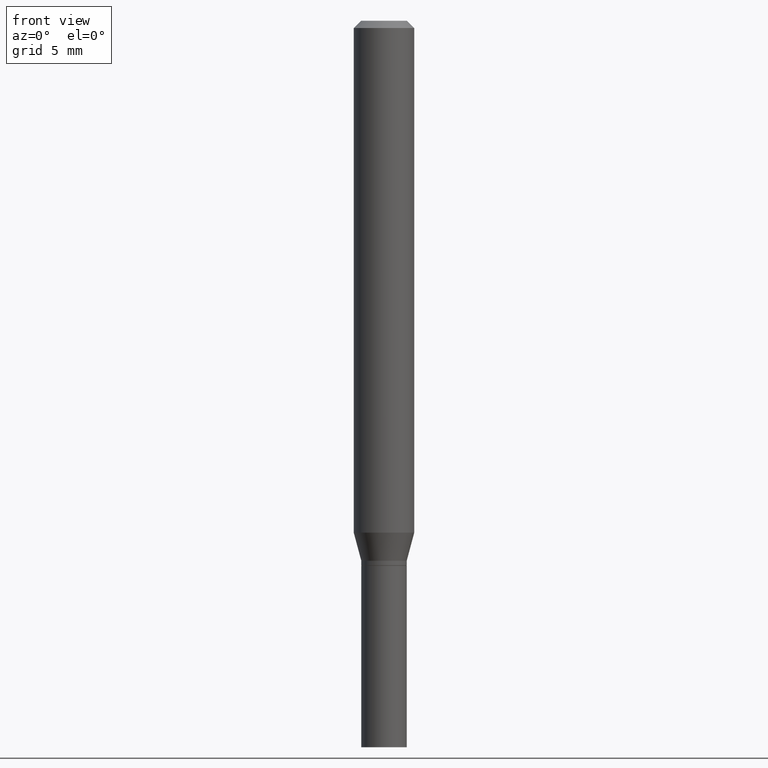
[diagram: clean part render]
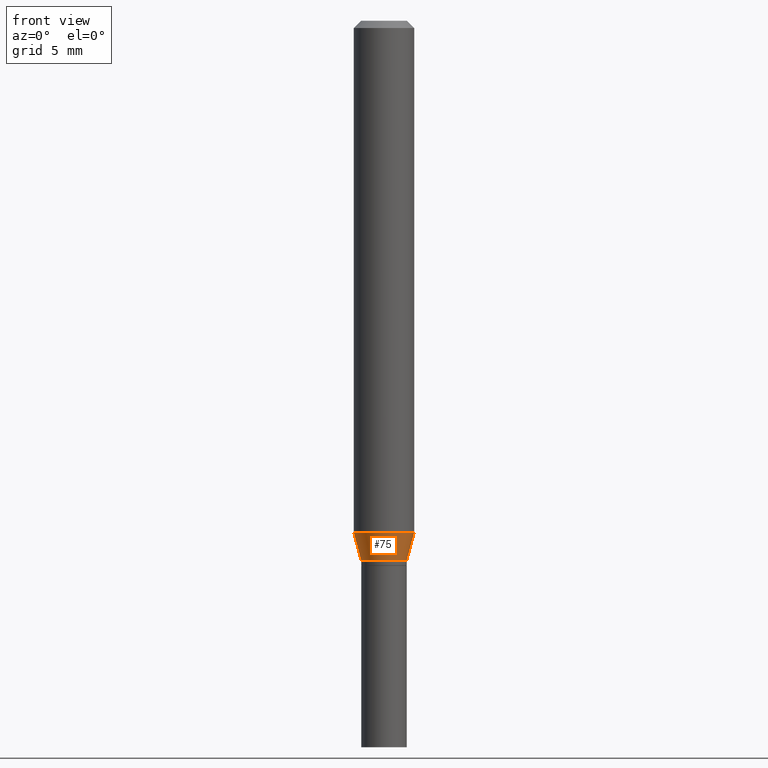
[diagram: same view with one face highlighted and labeled with its STEP entity id]
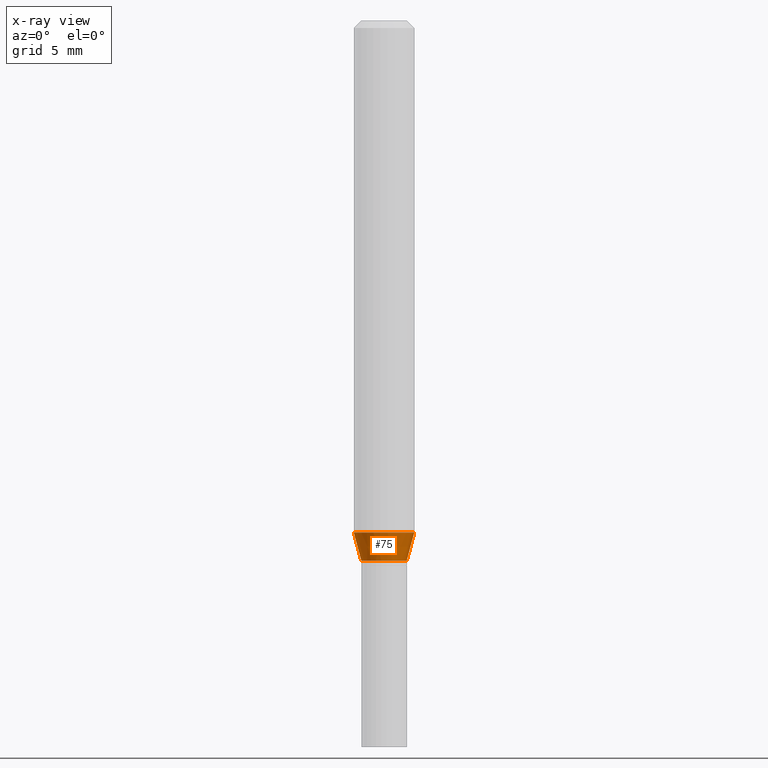
[diagram: x-ray of the same camera — body ghosted, the highlighted face saturated]
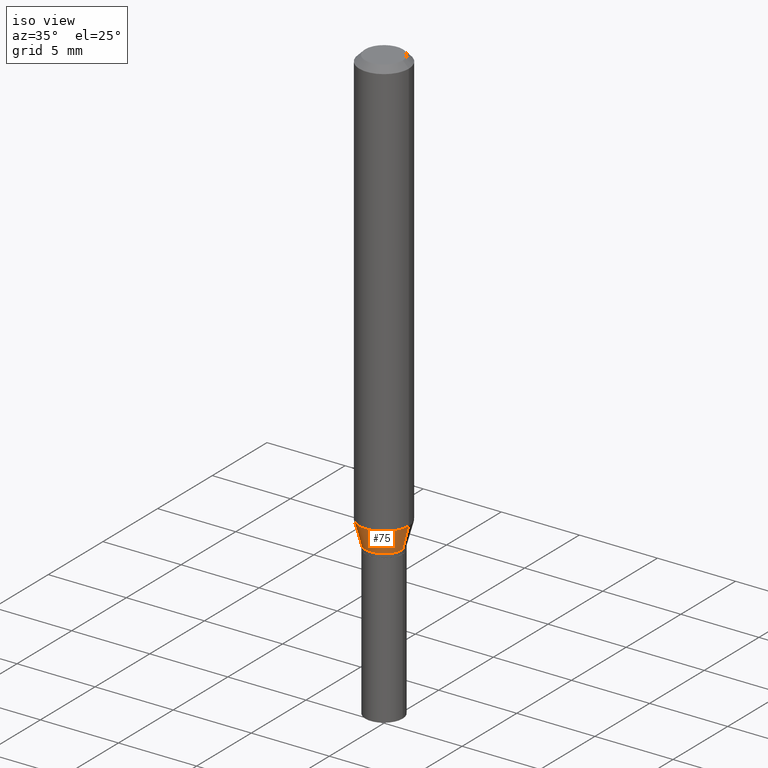
[diagram: same view with one face highlighted and labeled with its STEP entity id]
A machine part, front view. The second image highlights one B-rep face of the part: STEP entity #75.
The next image is the same camera in x-ray: the body ghosted, the highlighted face saturated — about 0% of this face is hidden behind the body in this view.
A second angle (iso view) of the same face is appended — the face is thin or edge-on in the first view.
In plain terms, the highlighted conical surface has half-angle 15 deg.
Its self-contained STEP definition (entity closure, byte-faithful):
#1 = CARTESIAN_POINT ( 'NONE',  ( 2.726697718896427687E-29, -3.893001692810107575E-15, -1.115000000000000213 ) ) ;
#16 = AXIS2_PLACEMENT_3D ( 'NONE', #160, #368, #300 ) ;
#25 = EDGE_LOOP ( 'NONE', ( #102, #104, #178, #288 ) ) ;
#31 = LINE ( 'NONE', #83, #350 ) ;
#41 = CARTESIAN_POINT ( 'NONE',  ( 0.06250000000000000000, -4.126162842461739318E-15, -1.056780007401926458 ) ) ;
#68 = AXIS2_PLACEMENT_3D ( 'NONE', #321, #105, #251 ) ;
#72 = CIRCLE ( 'NONE', #68, 0.06250000000000000000 ) ;
#75 = ADVANCED_FACE ( 'NONE', ( #110 ), #137, .T. ) ;
#83 = CARTESIAN_POINT ( 'NONE',  ( -0.04690000000000017766, -3.559757149738619424E-15, -1.115000000000000213 ) ) ;
#94 = CARTESIAN_POINT ( 'NONE',  ( -0.04690000000000017766, -3.402697807497452228E-15, -1.115000000000000213 ) ) ;
#101 = DIRECTION ( 'NONE',  ( 0.2588190451025214611, 1.565188264969620982E-15, 0.9659258262890679791 ) ) ;
#102 = ORIENTED_EDGE ( 'NONE', *, *, #280, .F. ) ;
#104 = ORIENTED_EDGE ( 'NONE', *, *, #154, .T. ) ;
#105 = DIRECTION ( 'NONE',  ( -2.445468806185136597E-29, 3.491481338843145583E-15, 1.000000000000000000 ) ) ;
#110 = FACE_OUTER_BOUND ( 'NONE', #25, .T. ) ;
#119 = EDGE_CURVE ( 'NONE', #454, #219, #72, .T. ) ;
#137 = CONICAL_SURFACE ( 'NONE', #293, 0.04690000000000017766, 0.2617993877991501850 ) ;
#147 = DIRECTION ( 'NONE',  ( 1.000000000000000000, -6.982962677686271444E-15, 0.000000000000000000 ) ) ;
#154 = EDGE_CURVE ( 'NONE', #260, #317, #424, .T. ) ;
#155 = DIRECTION ( 'NONE',  ( -2.445468806185136597E-29, 3.491481338843145583E-15, 1.000000000000000000 ) ) ;
#158 = DIRECTION ( 'NONE',  ( -0.2588190451025214611, 5.211531920934550253E-15, 0.9659258262890679791 ) ) ;
#160 = CARTESIAN_POINT ( 'NONE',  ( 2.726697718896427687E-29, -3.893001692810107575E-15, -1.115000000000000213 ) ) ;
#169 = EDGE_CURVE ( 'NONE', #317, #219, #172, .T. ) ;
#172 = LINE ( 'NONE', #312, #423 ) ;
#178 = ORIENTED_EDGE ( 'NONE', *, *, #169, .T. ) ;
#219 = VERTEX_POINT ( 'NONE', #41 ) ;
#251 = DIRECTION ( 'NONE',  ( 1.000000000000000000, -6.982962677686270655E-15, 0.000000000000000000 ) ) ;
#260 = VERTEX_POINT ( 'NONE', #94 ) ;
#276 = CARTESIAN_POINT ( 'NONE',  ( -0.06250000000000000000, -3.245638465256284638E-15, -1.056780007401926458 ) ) ;
#280 = EDGE_CURVE ( 'NONE', #260, #454, #31, .T. ) ;
#288 = ORIENTED_EDGE ( 'NONE', *, *, #119, .F. ) ;
#293 = AXIS2_PLACEMENT_3D ( 'NONE', #1, #155, #147 ) ;
#300 = DIRECTION ( 'NONE',  ( 1.000000000000000000, -6.982962677686271444E-15, 0.000000000000000000 ) ) ;
#312 = CARTESIAN_POINT ( 'NONE',  ( 0.04690000000000017766, -4.220502642393595055E-15, -1.115000000000000213 ) ) ;
#317 = VERTEX_POINT ( 'NONE', #369 ) ;
#321 = CARTESIAN_POINT ( 'NONE',  ( 2.584322543101508946E-29, -3.689727675106347649E-15, -1.056780007401926458 ) ) ;
#350 = VECTOR ( 'NONE', #158, 39.37007874015748143 ) ;
#368 = DIRECTION ( 'NONE',  ( -2.445468806185136597E-29, 3.491481338843145583E-15, 1.000000000000000000 ) ) ;
#369 = CARTESIAN_POINT ( 'NONE',  ( 0.04690000000000017766, -4.220502642393595055E-15, -1.115000000000000213 ) ) ;
#423 = VECTOR ( 'NONE', #101, 39.37007874015748143 ) ;
#424 = CIRCLE ( 'NONE', #16, 0.04690000000000017766 ) ;
#454 = VERTEX_POINT ( 'NONE', #276 ) ;